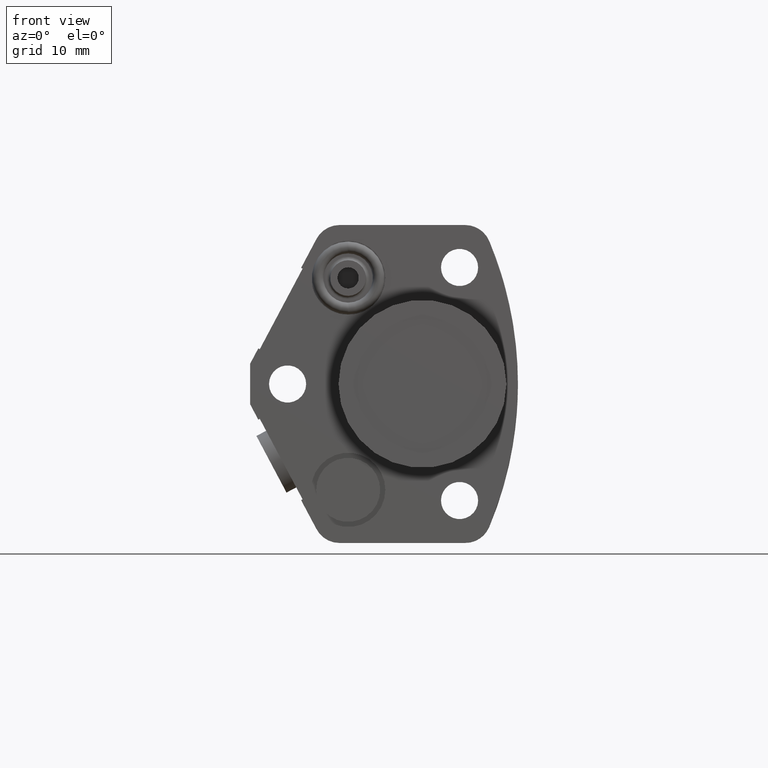
[diagram: clean part render]
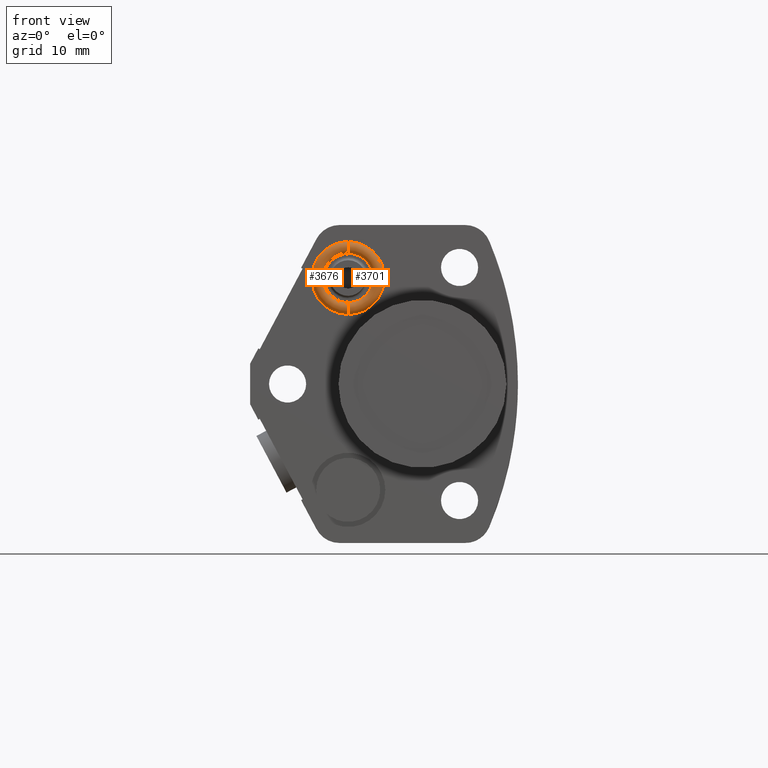
[diagram: same view with one multi-face feature highlighted, each face labeled with its STEP entity id]
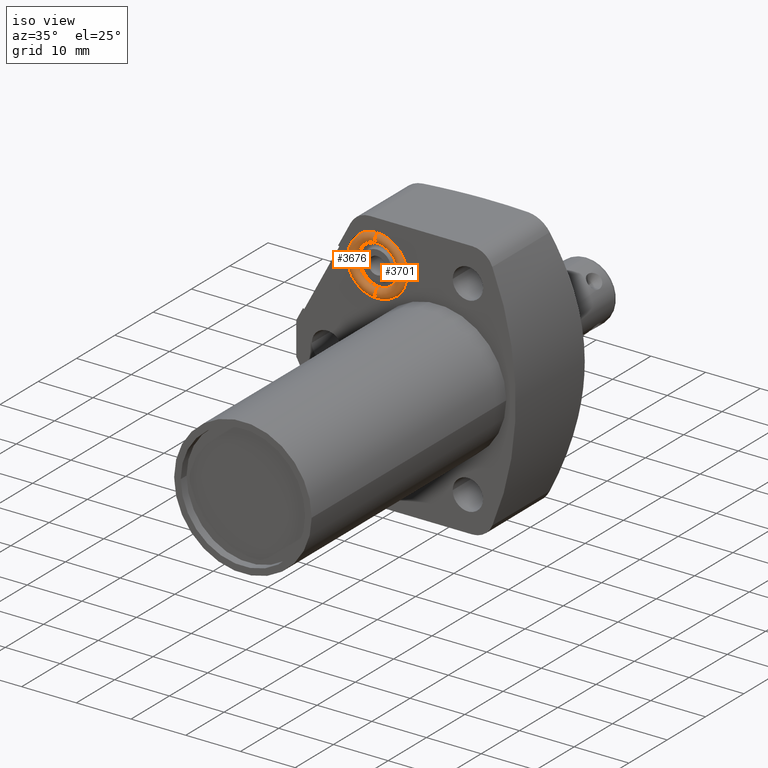
[diagram: same view with one multi-face feature highlighted, each face labeled with its STEP entity id]
A machine part, front view. The highlighted faces form ONE feature: a constant-radius fillet chain: 2 tangent blend faces with common blend radius 0.889 mm. The faces share edges in the B-rep.
A second angle (iso view) of the same feature is appended — it is thin or edge-on in the first view.
Their STEP definitions:
[1] entity #3701 (Torus):
#1572=CARTESIAN_POINT('',(-4.38E-1,3.7E-2,6.25E-1));
#1573=DIRECTION('',(0.E0,-1.E0,0.E0));
#1574=DIRECTION('',(0.E0,0.E0,-1.E0));
#1575=AXIS2_PLACEMENT_3D('',#1572,#1573,#1574);
#1580=CARTESIAN_POINT('',(-4.38E-1,1.7E-2,4.45E-1));
#1581=DIRECTION('',(1.E0,0.E0,0.E0));
#1582=DIRECTION('',(0.E0,5.714285714286E-1,8.206518066483E-1));
#1583=AXIS2_PLACEMENT_3D('',#1580,#1581,#1582);
#1588=CARTESIAN_POINT('',(-4.38E-1,1.7E-2,8.05E-1));
#1589=DIRECTION('',(-1.E0,0.E0,0.E0));
#1590=DIRECTION('',(0.E0,5.714285714286E-1,-8.206518066483E-1));
#1591=AXIS2_PLACEMENT_3D('',#1588,#1589,#1590);
#1604=CARTESIAN_POINT('',(-4.38E-1,3.7E-2,6.25E-1));
#1605=DIRECTION('',(0.E0,-1.E0,0.E0));
#1606=DIRECTION('',(0.E0,0.E0,-1.E0));
#1607=AXIS2_PLACEMENT_3D('',#1604,#1605,#1606);
#2294=CARTESIAN_POINT('',(-4.38E-1,3.7E-2,4.737228132327E-1));
#2295=CARTESIAN_POINT('',(-4.38E-1,3.7E-2,4.162771867673E-1));
#2296=VERTEX_POINT('',#2294);
#2297=VERTEX_POINT('',#2295);
#2312=CARTESIAN_POINT('',(-4.38E-1,3.7E-2,7.762771867673E-1));
#2313=CARTESIAN_POINT('',(-4.38E-1,3.7E-2,8.337228132327E-1));
#2314=VERTEX_POINT('',#2312);
#2315=VERTEX_POINT('',#2313);
#3689=CARTESIAN_POINT('',(-4.38E-1,1.7E-2,6.25E-1));
#3690=DIRECTION('',(0.E0,-1.E0,0.E0));
#3691=DIRECTION('',(0.E0,0.E0,1.E0));
#3692=AXIS2_PLACEMENT_3D('',#3689,#3690,#3691);
#3693=TOROIDAL_SURFACE('',#3692,1.8E-1,3.5E-2);
#3694=ORIENTED_EDGE('',*,*,#3667,.F.);
#3696=ORIENTED_EDGE('',*,*,#3695,.T.);
#3697=ORIENTED_EDGE('',*,*,#3670,.T.);
#3698=ORIENTED_EDGE('',*,*,#3657,.F.);
#3699=EDGE_LOOP('',(#3694,#3696,#3697,#3698));
#3700=FACE_OUTER_BOUND('',#3699,.F.);
#1576=CIRCLE('',#1575,2.087228132327E-1);
#1584=CIRCLE('',#1583,3.5E-2);
#1592=CIRCLE('',#1591,3.5E-2);
#1608=CIRCLE('',#1607,1.512771867673E-1);
#3657=EDGE_CURVE('',#2297,#2315,#1576,.T.);
#3667=EDGE_CURVE('',#2296,#2297,#1584,.T.);
#3670=EDGE_CURVE('',#2314,#2315,#1592,.T.);
#3695=EDGE_CURVE('',#2296,#2314,#1608,.T.);
#3701=ADVANCED_FACE('',(#3700),#3693,.T.);
[2] entity #3676 (Torus):
#1564=CARTESIAN_POINT('',(-4.38E-1,3.7E-2,6.25E-1));
#1565=DIRECTION('',(0.E0,1.E0,0.E0));
#1566=DIRECTION('',(0.E0,0.E0,-1.E0));
#1567=AXIS2_PLACEMENT_3D('',#1564,#1565,#1566);
#1580=CARTESIAN_POINT('',(-4.38E-1,1.7E-2,4.45E-1));
#1581=DIRECTION('',(1.E0,0.E0,0.E0));
#1582=DIRECTION('',(0.E0,5.714285714286E-1,8.206518066483E-1));
#1583=AXIS2_PLACEMENT_3D('',#1580,#1581,#1582);
#1588=CARTESIAN_POINT('',(-4.38E-1,1.7E-2,8.05E-1));
#1589=DIRECTION('',(-1.E0,0.E0,0.E0));
#1590=DIRECTION('',(0.E0,5.714285714286E-1,-8.206518066483E-1));
#1591=AXIS2_PLACEMENT_3D('',#1588,#1589,#1590);
#1596=CARTESIAN_POINT('',(-4.38E-1,3.7E-2,6.25E-1));
#1597=DIRECTION('',(0.E0,1.E0,0.E0));
#1598=DIRECTION('',(0.E0,0.E0,-1.E0));
#1599=AXIS2_PLACEMENT_3D('',#1596,#1597,#1598);
#2294=CARTESIAN_POINT('',(-4.38E-1,3.7E-2,4.737228132327E-1));
#2295=CARTESIAN_POINT('',(-4.38E-1,3.7E-2,4.162771867673E-1));
#2296=VERTEX_POINT('',#2294);
#2297=VERTEX_POINT('',#2295);
#2312=CARTESIAN_POINT('',(-4.38E-1,3.7E-2,7.762771867673E-1));
#2313=CARTESIAN_POINT('',(-4.38E-1,3.7E-2,8.337228132327E-1));
#2314=VERTEX_POINT('',#2312);
#2315=VERTEX_POINT('',#2313);
#3662=CARTESIAN_POINT('',(-4.38E-1,1.7E-2,6.25E-1));
#3663=DIRECTION('',(0.E0,-1.E0,0.E0));
#3664=DIRECTION('',(0.E0,0.E0,1.E0));
#3665=AXIS2_PLACEMENT_3D('',#3662,#3663,#3664);
#3666=TOROIDAL_SURFACE('',#3665,1.8E-1,3.5E-2);
#3668=ORIENTED_EDGE('',*,*,#3667,.T.);
#3669=ORIENTED_EDGE('',*,*,#3655,.T.);
#3671=ORIENTED_EDGE('',*,*,#3670,.F.);
#3673=ORIENTED_EDGE('',*,*,#3672,.F.);
#3674=EDGE_LOOP('',(#3668,#3669,#3671,#3673));
#3675=FACE_OUTER_BOUND('',#3674,.F.);
#1568=CIRCLE('',#1567,2.087228132327E-1);
#1584=CIRCLE('',#1583,3.5E-2);
#1592=CIRCLE('',#1591,3.5E-2);
#1600=CIRCLE('',#1599,1.512771867673E-1);
#3655=EDGE_CURVE('',#2297,#2315,#1568,.T.);
#3667=EDGE_CURVE('',#2296,#2297,#1584,.T.);
#3670=EDGE_CURVE('',#2314,#2315,#1592,.T.);
#3672=EDGE_CURVE('',#2296,#2314,#1600,.T.);
#3676=ADVANCED_FACE('',(#3675),#3666,.T.);